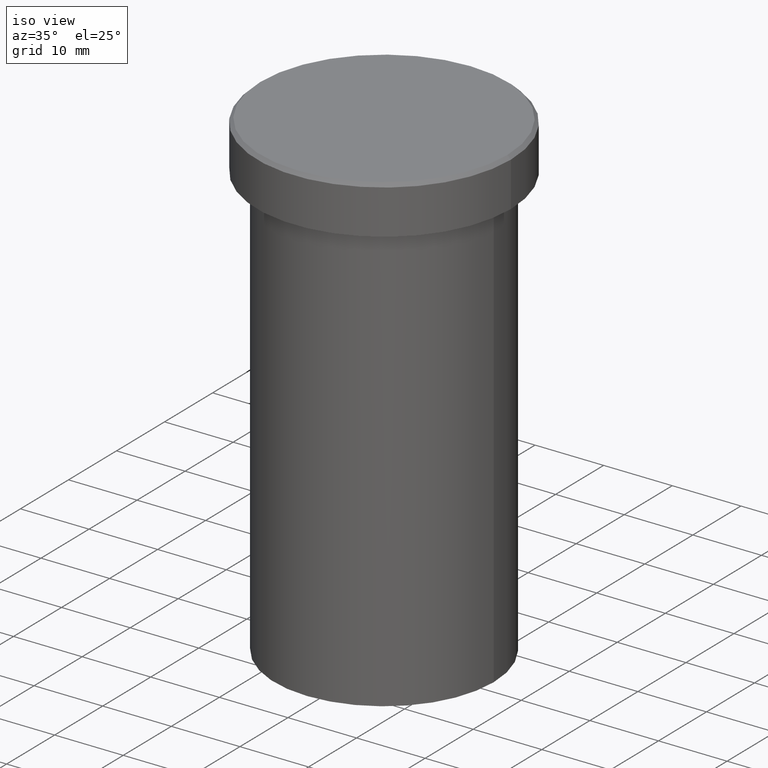
[diagram: clean part render]
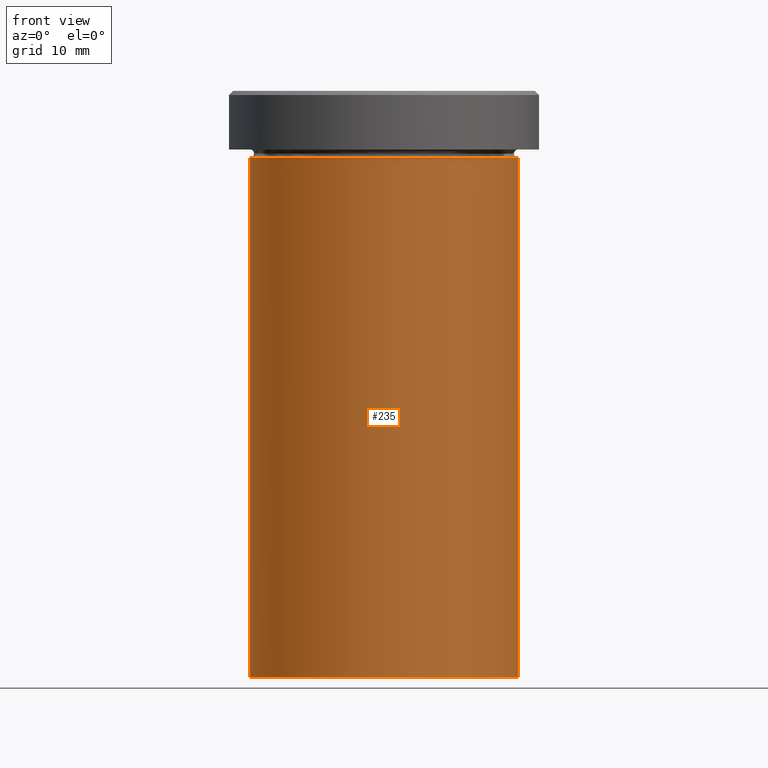
[diagram: tour spotlight — one face highlighted and labeled with its STEP entity id]
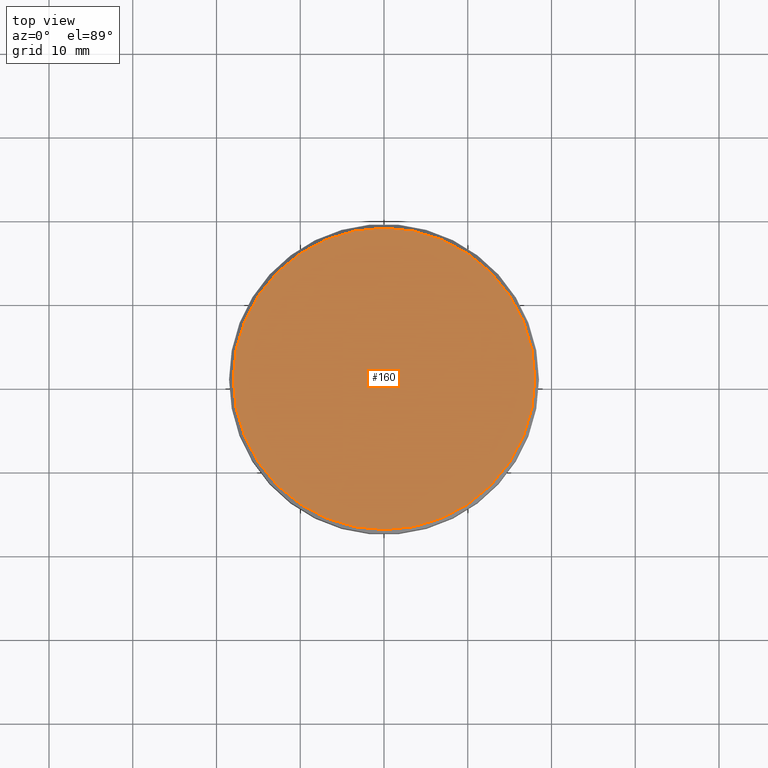
[diagram: tour spotlight — one face highlighted and labeled with its STEP entity id]
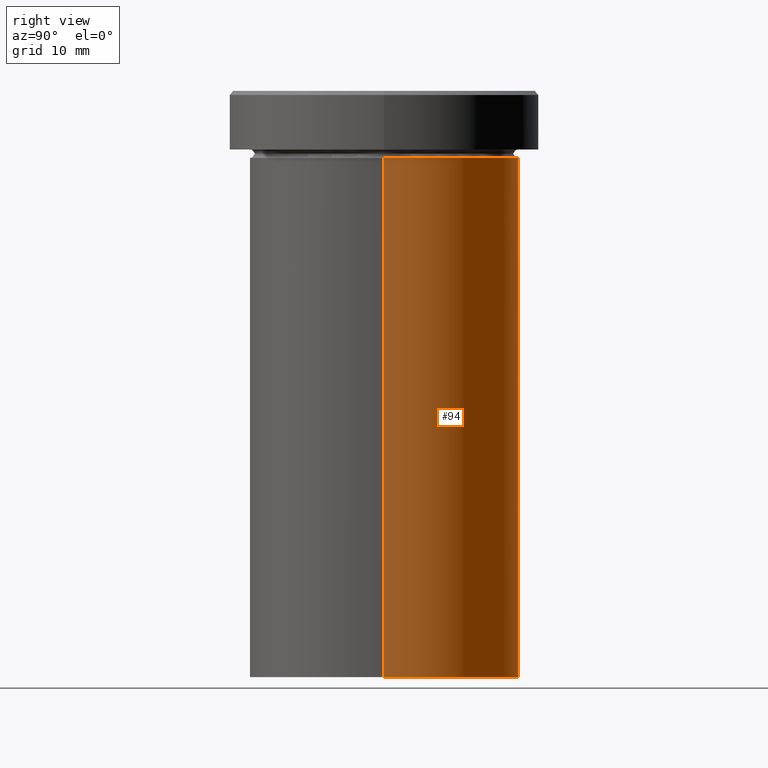
[diagram: tour spotlight — one face highlighted and labeled with its STEP entity id]
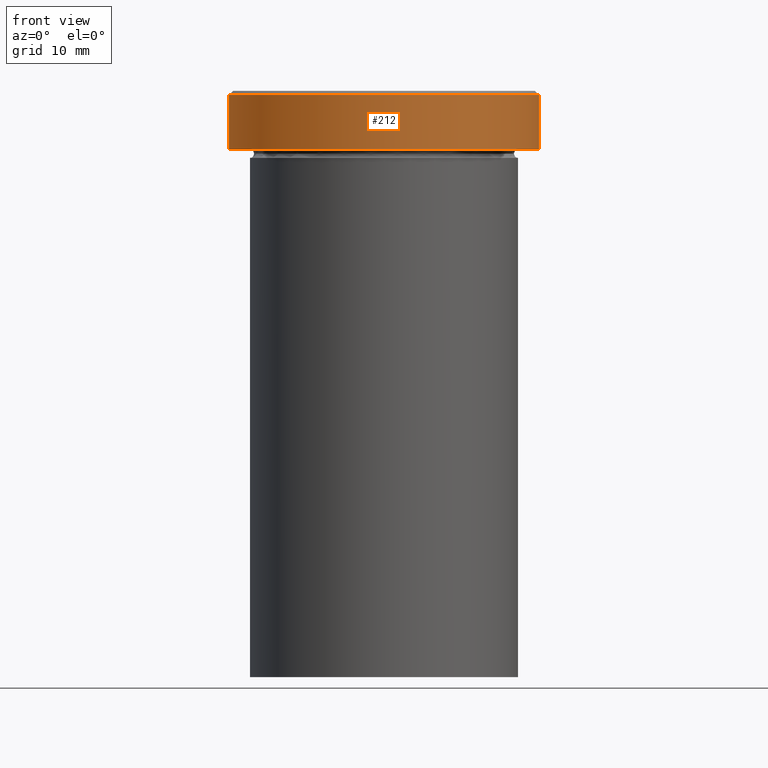
[diagram: tour spotlight — one face highlighted and labeled with its STEP entity id]
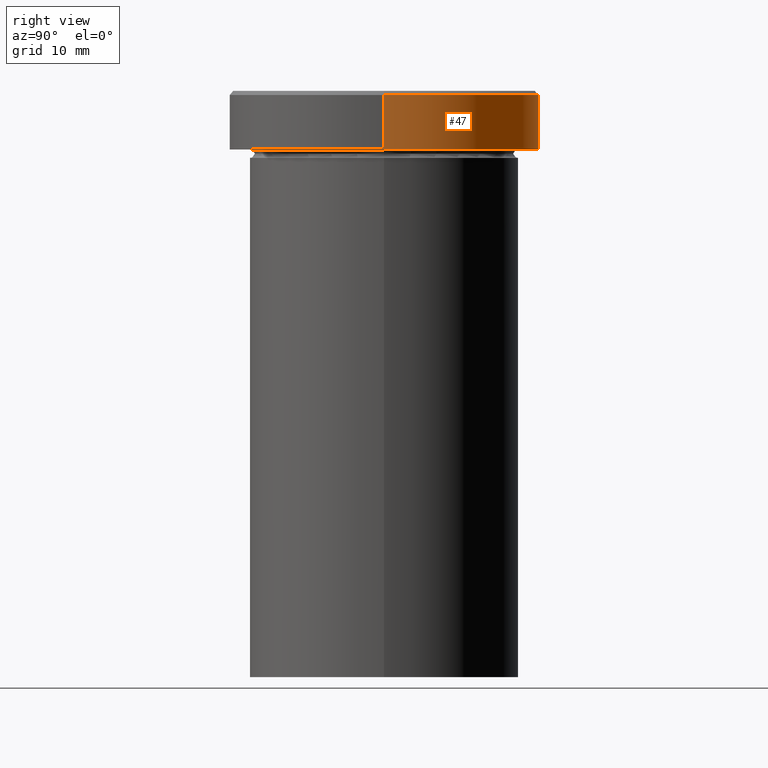
[diagram: tour spotlight — one face highlighted and labeled with its STEP entity id]
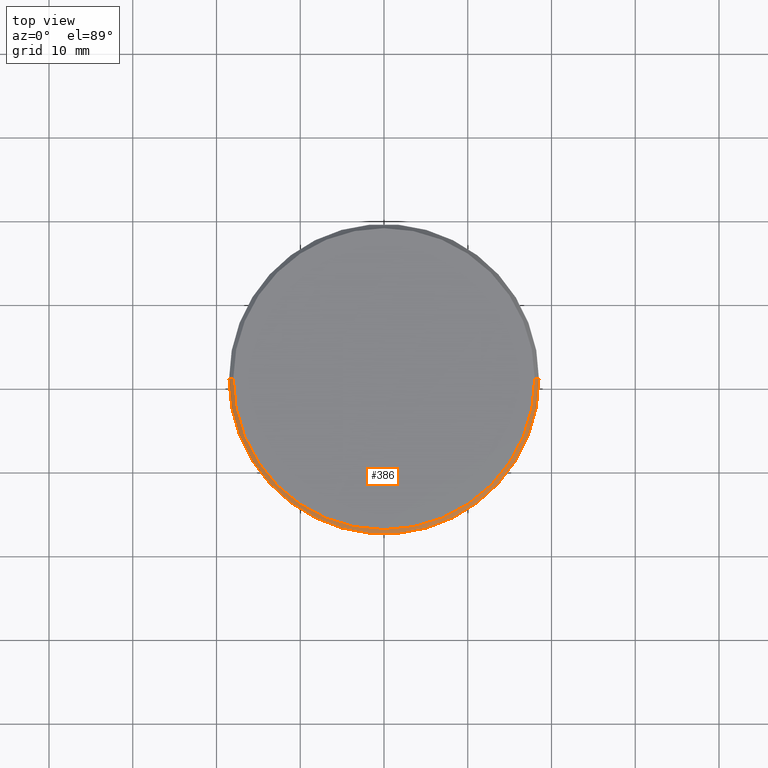
[diagram: tour spotlight — one face highlighted and labeled with its STEP entity id]
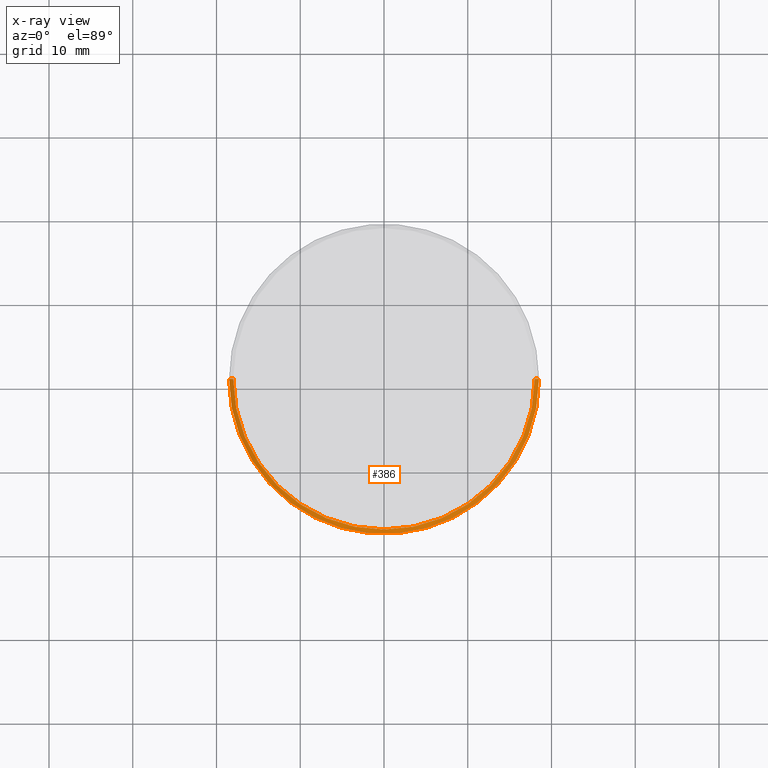
[diagram: x-ray of the same camera — body ghosted, this tour face saturated]
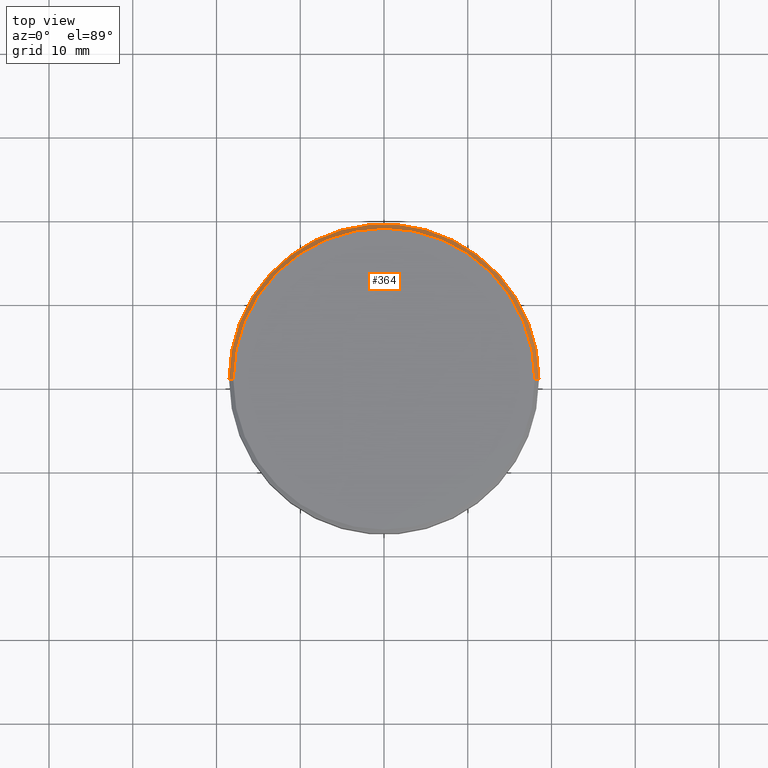
[diagram: tour spotlight — one face highlighted and labeled with its STEP entity id]
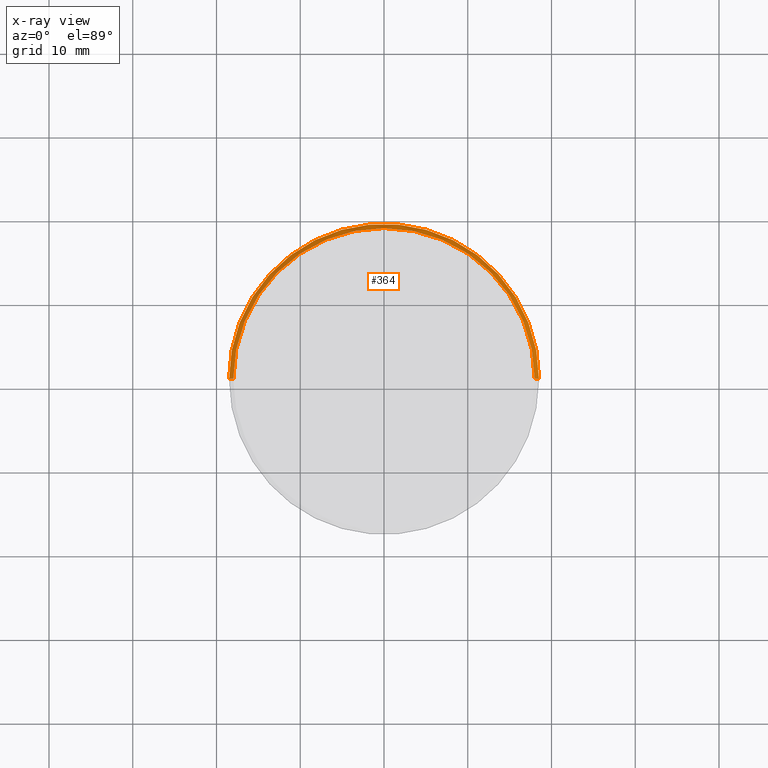
[diagram: x-ray of the same camera — body ghosted, this tour face saturated]
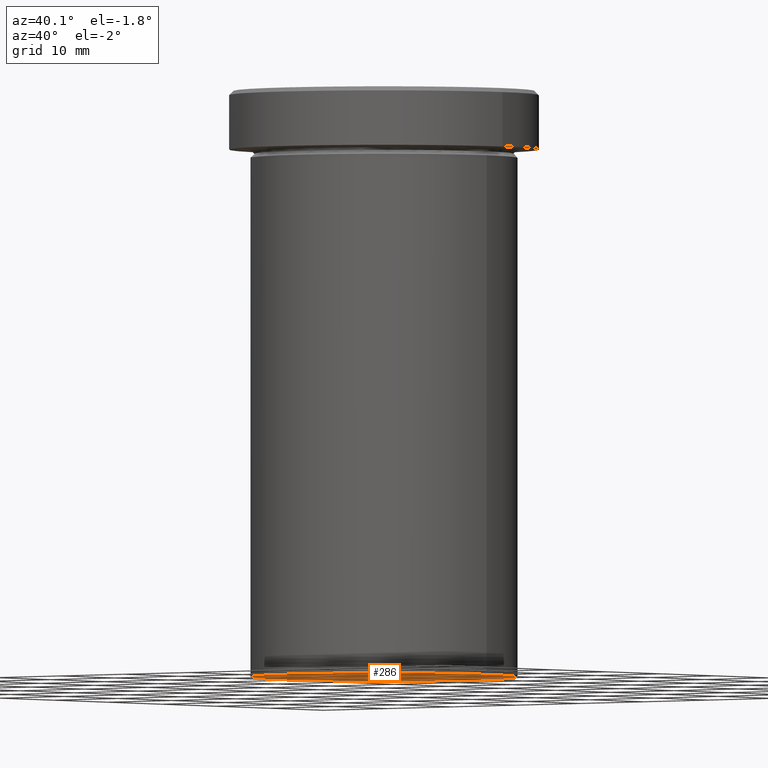
[diagram: tour spotlight — one face highlighted and labeled with its STEP entity id]
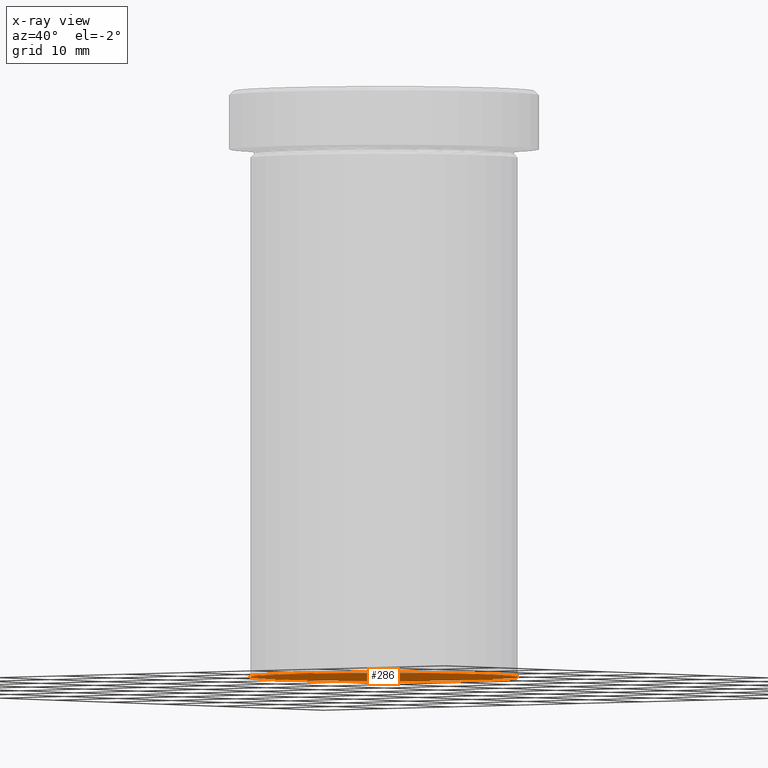
[diagram: x-ray of the same camera — body ghosted, this tour face saturated]
A machine part: a face-by-face anatomy tour. The part has 13 B-rep faces; the first image is the clean iso view, then the 8 largest visible faces are spotlighted one at a time (largest first), each with its STEP entity span.

Face 1 — front view, entity #235. In plain terms, the highlighted cylindrical surface (partial cylindrical patch) has radius 16 mm, axis along (-0, -0, 1).
Definition (entity closure, byte-faithful):
#1 = CARTESIAN_POINT ( 'NONE',  ( -16.00000000000000000, 1.959434878635765131E-15, 0.000000000000000000 ) ) ;
#8 = CYLINDRICAL_SURFACE ( 'NONE', #130, 16.00000000000000000 ) ;
#15 = DIRECTION ( 'NONE',  ( 1.000000000000000000, 0.000000000000000000, 0.000000000000000000 ) ) ;
#26 = VERTEX_POINT ( 'NONE', #121 ) ;
#28 = CARTESIAN_POINT ( 'NONE',  ( -16.00000000000000000, 1.959434878635765131E-15, -8.000000000000000000 ) ) ;
#41 = VERTEX_POINT ( 'NONE', #49 ) ;
#49 = CARTESIAN_POINT ( 'NONE',  ( 16.00000000000000000, 0.000000000000000000, -8.000000000000000000 ) ) ;
#55 = CIRCLE ( 'NONE', #143, 16.00000000000000000 ) ;
#66 = DIRECTION ( 'NONE',  ( -0.000000000000000000, -0.000000000000000000, 1.000000000000000000 ) ) ;
#100 = CARTESIAN_POINT ( 'NONE',  ( -16.00000000000000000, 1.959434878635765131E-15, -70.00000000000000000 ) ) ;
#112 = DIRECTION ( 'NONE',  ( -0.000000000000000000, -0.000000000000000000, 1.000000000000000000 ) ) ;
#121 = CARTESIAN_POINT ( 'NONE',  ( 16.00000000000000000, 0.000000000000000000, -70.00000000000000000 ) ) ;
#130 = AXIS2_PLACEMENT_3D ( 'NONE', #202, #145, #270 ) ;
#132 = EDGE_CURVE ( 'NONE', #395, #26, #249, .T. ) ;
#142 = DIRECTION ( 'NONE',  ( -0.000000000000000000, -0.000000000000000000, 1.000000000000000000 ) ) ;
#143 = AXIS2_PLACEMENT_3D ( 'NONE', #300, #271, #15 ) ;
#145 = DIRECTION ( 'NONE',  ( -0.000000000000000000, -0.000000000000000000, 1.000000000000000000 ) ) ;
#152 = ORIENTED_EDGE ( 'NONE', *, *, #132, .T. ) ;
#168 = DIRECTION ( 'NONE',  ( 1.000000000000000000, 0.000000000000000000, 0.000000000000000000 ) ) ;
#172 = EDGE_CURVE ( 'NONE', #395, #400, #204, .T. ) ;
#190 = ORIENTED_EDGE ( 'NONE', *, *, #241, .T. ) ;
#202 = CARTESIAN_POINT ( 'NONE',  ( 0.000000000000000000, 0.000000000000000000, 0.000000000000000000 ) ) ;
#204 = LINE ( 'NONE', #1, #311 ) ;
#207 = AXIS2_PLACEMENT_3D ( 'NONE', #345, #66, #168 ) ;
#235 = ADVANCED_FACE ( 'NONE', ( #356 ), #8, .T. ) ;
#241 = EDGE_CURVE ( 'NONE', #26, #41, #243, .T. ) ;
#243 = LINE ( 'NONE', #387, #329 ) ;
#248 = EDGE_CURVE ( 'NONE', #400, #41, #55, .T. ) ;
#249 = CIRCLE ( 'NONE', #207, 16.00000000000000000 ) ;
#270 = DIRECTION ( 'NONE',  ( 1.000000000000000000, 0.000000000000000000, 0.000000000000000000 ) ) ;
#271 = DIRECTION ( 'NONE',  ( -0.000000000000000000, -0.000000000000000000, 1.000000000000000000 ) ) ;
#284 = ORIENTED_EDGE ( 'NONE', *, *, #172, .F. ) ;
#294 = ORIENTED_EDGE ( 'NONE', *, *, #248, .F. ) ;
#300 = CARTESIAN_POINT ( 'NONE',  ( 0.000000000000000000, 0.000000000000000000, -8.000000000000000000 ) ) ;
#311 = VECTOR ( 'NONE', #142, 1000.000000000000000 ) ;
#329 = VECTOR ( 'NONE', #112, 1000.000000000000000 ) ;
#345 = CARTESIAN_POINT ( 'NONE',  ( 0.000000000000000000, 0.000000000000000000, -70.00000000000000000 ) ) ;
#356 = FACE_OUTER_BOUND ( 'NONE', #407, .T. ) ;
#387 = CARTESIAN_POINT ( 'NONE',  ( 16.00000000000000000, 0.000000000000000000, 0.000000000000000000 ) ) ;
#395 = VERTEX_POINT ( 'NONE', #100 ) ;
#400 = VERTEX_POINT ( 'NONE', #28 ) ;
#407 = EDGE_LOOP ( 'NONE', ( #284, #152, #190, #294 ) ) ;

Face 2 — top view, entity #160. In plain terms, the highlighted planar face has unit normal (0, -0, 1).
Definition (entity closure, byte-faithful):
#2 = ORIENTED_EDGE ( 'NONE', *, *, #101, .T. ) ;
#9 = CIRCLE ( 'NONE', #108, 18.00000000000001066 ) ;
#44 = ORIENTED_EDGE ( 'NONE', *, *, #89, .T. ) ;
#50 = CARTESIAN_POINT ( 'NONE',  ( 18.00000000000001066, 2.234980408443920004E-15, 0.000000000000000000 ) ) ;
#68 = DIRECTION ( 'NONE',  ( 1.000000000000000000, 0.000000000000000000, 0.000000000000000000 ) ) ;
#74 = FACE_OUTER_BOUND ( 'NONE', #205, .T. ) ;
#79 = DIRECTION ( 'NONE',  ( 0.000000000000000000, -0.000000000000000000, 1.000000000000000000 ) ) ;
#80 = CIRCLE ( 'NONE', #409, 18.00000000000001066 ) ;
#89 = EDGE_CURVE ( 'NONE', #369, #275, #80, .T. ) ;
#101 = EDGE_CURVE ( 'NONE', #275, #369, #9, .T. ) ;
#102 = DIRECTION ( 'NONE',  ( -0.000000000000000000, -0.000000000000000000, 1.000000000000000000 ) ) ;
#108 = AXIS2_PLACEMENT_3D ( 'NONE', #250, #287, #257 ) ;
#160 = ADVANCED_FACE ( 'NONE', ( #74 ), #328, .T. ) ;
#205 = EDGE_LOOP ( 'NONE', ( #44, #2 ) ) ;
#250 = CARTESIAN_POINT ( 'NONE',  ( 0.000000000000000000, 0.000000000000000000, 0.000000000000000000 ) ) ;
#257 = DIRECTION ( 'NONE',  ( 1.000000000000000000, 0.000000000000000000, 0.000000000000000000 ) ) ;
#275 = VERTEX_POINT ( 'NONE', #50 ) ;
#277 = AXIS2_PLACEMENT_3D ( 'NONE', #296, #79, #333 ) ;
#287 = DIRECTION ( 'NONE',  ( -0.000000000000000000, -0.000000000000000000, 1.000000000000000000 ) ) ;
#296 = CARTESIAN_POINT ( 'NONE',  ( 0.000000000000000000, 0.000000000000000000, 0.000000000000000000 ) ) ;
#316 = CARTESIAN_POINT ( 'NONE',  ( 0.000000000000000000, 0.000000000000000000, 0.000000000000000000 ) ) ;
#328 = PLANE ( 'NONE',  #277 ) ;
#333 = DIRECTION ( 'NONE',  ( 1.000000000000000000, 0.000000000000000000, 0.000000000000000000 ) ) ;
#369 = VERTEX_POINT ( 'NONE', #404 ) ;
#404 = CARTESIAN_POINT ( 'NONE',  ( -18.00000000000001066, 0.000000000000000000, 0.000000000000000000 ) ) ;
#409 = AXIS2_PLACEMENT_3D ( 'NONE', #316, #102, #68 ) ;

Face 3 — right view, entity #94. In plain terms, the highlighted cylindrical surface (partial cylindrical patch) has radius 16 mm, axis along (-0, -0, 1).
Definition (entity closure, byte-faithful):
#1 = CARTESIAN_POINT ( 'NONE',  ( -16.00000000000000000, 1.959434878635765131E-15, 0.000000000000000000 ) ) ;
#25 = EDGE_CURVE ( 'NONE', #26, #395, #222, .T. ) ;
#26 = VERTEX_POINT ( 'NONE', #121 ) ;
#28 = CARTESIAN_POINT ( 'NONE',  ( -16.00000000000000000, 1.959434878635765131E-15, -8.000000000000000000 ) ) ;
#30 = DIRECTION ( 'NONE',  ( 1.000000000000000000, 0.000000000000000000, 0.000000000000000000 ) ) ;
#39 = AXIS2_PLACEMENT_3D ( 'NONE', #366, #196, #30 ) ;
#41 = VERTEX_POINT ( 'NONE', #49 ) ;
#48 = AXIS2_PLACEMENT_3D ( 'NONE', #70, #117, #211 ) ;
#49 = CARTESIAN_POINT ( 'NONE',  ( 16.00000000000000000, 0.000000000000000000, -8.000000000000000000 ) ) ;
#70 = CARTESIAN_POINT ( 'NONE',  ( 0.000000000000000000, 0.000000000000000000, -8.000000000000000000 ) ) ;
#75 = ORIENTED_EDGE ( 'NONE', *, *, #150, .F. ) ;
#94 = ADVANCED_FACE ( 'NONE', ( #198 ), #398, .T. ) ;
#100 = CARTESIAN_POINT ( 'NONE',  ( -16.00000000000000000, 1.959434878635765131E-15, -70.00000000000000000 ) ) ;
#112 = DIRECTION ( 'NONE',  ( -0.000000000000000000, -0.000000000000000000, 1.000000000000000000 ) ) ;
#117 = DIRECTION ( 'NONE',  ( -0.000000000000000000, -0.000000000000000000, 1.000000000000000000 ) ) ;
#121 = CARTESIAN_POINT ( 'NONE',  ( 16.00000000000000000, 0.000000000000000000, -70.00000000000000000 ) ) ;
#142 = DIRECTION ( 'NONE',  ( -0.000000000000000000, -0.000000000000000000, 1.000000000000000000 ) ) ;
#150 = EDGE_CURVE ( 'NONE', #41, #400, #229, .T. ) ;
#151 = DIRECTION ( 'NONE',  ( -0.000000000000000000, -0.000000000000000000, 1.000000000000000000 ) ) ;
#169 = EDGE_LOOP ( 'NONE', ( #223, #322, #75, #174 ) ) ;
#172 = EDGE_CURVE ( 'NONE', #395, #400, #204, .T. ) ;
#174 = ORIENTED_EDGE ( 'NONE', *, *, #241, .F. ) ;
#180 = CARTESIAN_POINT ( 'NONE',  ( 0.000000000000000000, 0.000000000000000000, -70.00000000000000000 ) ) ;
#196 = DIRECTION ( 'NONE',  ( -0.000000000000000000, -0.000000000000000000, 1.000000000000000000 ) ) ;
#198 = FACE_OUTER_BOUND ( 'NONE', #169, .T. ) ;
#204 = LINE ( 'NONE', #1, #311 ) ;
#211 = DIRECTION ( 'NONE',  ( 1.000000000000000000, 0.000000000000000000, 0.000000000000000000 ) ) ;
#222 = CIRCLE ( 'NONE', #291, 16.00000000000000000 ) ;
#223 = ORIENTED_EDGE ( 'NONE', *, *, #25, .T. ) ;
#229 = CIRCLE ( 'NONE', #48, 16.00000000000000000 ) ;
#241 = EDGE_CURVE ( 'NONE', #26, #41, #243, .T. ) ;
#243 = LINE ( 'NONE', #387, #329 ) ;
#274 = DIRECTION ( 'NONE',  ( 1.000000000000000000, 0.000000000000000000, 0.000000000000000000 ) ) ;
#291 = AXIS2_PLACEMENT_3D ( 'NONE', #180, #151, #274 ) ;
#311 = VECTOR ( 'NONE', #142, 1000.000000000000000 ) ;
#322 = ORIENTED_EDGE ( 'NONE', *, *, #172, .T. ) ;
#329 = VECTOR ( 'NONE', #112, 1000.000000000000000 ) ;
#366 = CARTESIAN_POINT ( 'NONE',  ( 0.000000000000000000, 0.000000000000000000, 0.000000000000000000 ) ) ;
#387 = CARTESIAN_POINT ( 'NONE',  ( 16.00000000000000000, 0.000000000000000000, 0.000000000000000000 ) ) ;
#395 = VERTEX_POINT ( 'NONE', #100 ) ;
#398 = CYLINDRICAL_SURFACE ( 'NONE', #39, 16.00000000000000000 ) ;
#400 = VERTEX_POINT ( 'NONE', #28 ) ;

Face 4 — front view, entity #212. In plain terms, the highlighted cylindrical surface (partial cylindrical patch) has radius 18.5 mm, axis along (-0, -0, 1).
Definition (entity closure, byte-faithful):
#4 = DIRECTION ( 'NONE',  ( 1.000000000000000000, 0.000000000000000000, 0.000000000000000000 ) ) ;
#5 = ORIENTED_EDGE ( 'NONE', *, *, #390, .T. ) ;
#11 = CYLINDRICAL_SURFACE ( 'NONE', #353, 18.50000000000000000 ) ;
#35 = CARTESIAN_POINT ( 'NONE',  ( 18.50000000000000000, 0.000000000000000000, -6.999999999999998224 ) ) ;
#58 = ORIENTED_EDGE ( 'NONE', *, *, #251, .T. ) ;
#62 = VECTOR ( 'NONE', #319, 1000.000000000000000 ) ;
#69 = VECTOR ( 'NONE', #378, 1000.000000000000000 ) ;
#82 = FACE_OUTER_BOUND ( 'NONE', #242, .T. ) ;
#86 = ORIENTED_EDGE ( 'NONE', *, *, #164, .T. ) ;
#87 = CARTESIAN_POINT ( 'NONE',  ( -18.50000000000000000, 2.265596578422603396E-15, 0.000000000000000000 ) ) ;
#110 = DIRECTION ( 'NONE',  ( -0.000000000000000000, -0.000000000000000000, 1.000000000000000000 ) ) ;
#113 = EDGE_CURVE ( 'NONE', #252, #133, #228, .T. ) ;
#115 = DIRECTION ( 'NONE',  ( 1.000000000000000000, 0.000000000000000000, 0.000000000000000000 ) ) ;
#118 = AXIS2_PLACEMENT_3D ( 'NONE', #352, #246, #4 ) ;
#124 = VERTEX_POINT ( 'NONE', #35 ) ;
#125 = CIRCLE ( 'NONE', #208, 18.50000000000000000 ) ;
#133 = VERTEX_POINT ( 'NONE', #293 ) ;
#134 = LINE ( 'NONE', #285, #69 ) ;
#148 = CARTESIAN_POINT ( 'NONE',  ( 0.000000000000000000, 0.000000000000000000, -6.999999999999998224 ) ) ;
#157 = CIRCLE ( 'NONE', #118, 18.50000000000000000 ) ;
#164 = EDGE_CURVE ( 'NONE', #209, #133, #157, .T. ) ;
#176 = CARTESIAN_POINT ( 'NONE',  ( 0.000000000000000000, 0.000000000000000000, 0.000000000000000000 ) ) ;
#208 = AXIS2_PLACEMENT_3D ( 'NONE', #148, #388, #115 ) ;
#209 = VERTEX_POINT ( 'NONE', #384 ) ;
#212 = ADVANCED_FACE ( 'NONE', ( #82 ), #11, .T. ) ;
#228 = LINE ( 'NONE', #87, #62 ) ;
#242 = EDGE_LOOP ( 'NONE', ( #349, #58, #5, #86 ) ) ;
#246 = DIRECTION ( 'NONE',  ( 0.000000000000000000, 0.000000000000000000, -1.000000000000000000 ) ) ;
#251 = EDGE_CURVE ( 'NONE', #252, #124, #125, .T. ) ;
#252 = VERTEX_POINT ( 'NONE', #357 ) ;
#263 = DIRECTION ( 'NONE',  ( 1.000000000000000000, 0.000000000000000000, 0.000000000000000000 ) ) ;
#285 = CARTESIAN_POINT ( 'NONE',  ( 18.50000000000000000, 0.000000000000000000, 0.000000000000000000 ) ) ;
#293 = CARTESIAN_POINT ( 'NONE',  ( -18.50000000000000000, 2.265596578422603396E-15, -0.5000000000000073275 ) ) ;
#319 = DIRECTION ( 'NONE',  ( -0.000000000000000000, -0.000000000000000000, 1.000000000000000000 ) ) ;
#349 = ORIENTED_EDGE ( 'NONE', *, *, #113, .F. ) ;
#352 = CARTESIAN_POINT ( 'NONE',  ( 0.000000000000000000, 0.000000000000000000, -0.5000000000000073275 ) ) ;
#353 = AXIS2_PLACEMENT_3D ( 'NONE', #176, #110, #263 ) ;
#357 = CARTESIAN_POINT ( 'NONE',  ( -18.50000000000000000, 2.265596578422603396E-15, -6.999999999999998224 ) ) ;
#378 = DIRECTION ( 'NONE',  ( -0.000000000000000000, -0.000000000000000000, 1.000000000000000000 ) ) ;
#384 = CARTESIAN_POINT ( 'NONE',  ( 18.50000000000000000, 0.000000000000000000, -0.5000000000000073275 ) ) ;
#388 = DIRECTION ( 'NONE',  ( -0.000000000000000000, -0.000000000000000000, 1.000000000000000000 ) ) ;
#390 = EDGE_CURVE ( 'NONE', #124, #209, #134, .T. ) ;

Face 5 — right view, entity #47. In plain terms, the highlighted cylindrical surface (partial cylindrical patch) has radius 18.5 mm, axis along (-0, -0, 1).
Definition (entity closure, byte-faithful):
#13 = FACE_OUTER_BOUND ( 'NONE', #52, .T. ) ;
#19 = DIRECTION ( 'NONE',  ( -0.000000000000000000, -0.000000000000000000, 1.000000000000000000 ) ) ;
#35 = CARTESIAN_POINT ( 'NONE',  ( 18.50000000000000000, 0.000000000000000000, -6.999999999999998224 ) ) ;
#47 = ADVANCED_FACE ( 'NONE', ( #13 ), #146, .T. ) ;
#52 = EDGE_LOOP ( 'NONE', ( #375, #99, #335, #315 ) ) ;
#56 = EDGE_CURVE ( 'NONE', #133, #209, #85, .T. ) ;
#62 = VECTOR ( 'NONE', #319, 1000.000000000000000 ) ;
#69 = VECTOR ( 'NONE', #378, 1000.000000000000000 ) ;
#85 = CIRCLE ( 'NONE', #131, 18.50000000000000000 ) ;
#87 = CARTESIAN_POINT ( 'NONE',  ( -18.50000000000000000, 2.265596578422603396E-15, 0.000000000000000000 ) ) ;
#99 = ORIENTED_EDGE ( 'NONE', *, *, #113, .T. ) ;
#113 = EDGE_CURVE ( 'NONE', #252, #133, #228, .T. ) ;
#116 = AXIS2_PLACEMENT_3D ( 'NONE', #188, #306, #159 ) ;
#124 = VERTEX_POINT ( 'NONE', #35 ) ;
#131 = AXIS2_PLACEMENT_3D ( 'NONE', #214, #394, #153 ) ;
#133 = VERTEX_POINT ( 'NONE', #293 ) ;
#134 = LINE ( 'NONE', #285, #69 ) ;
#146 = CYLINDRICAL_SURFACE ( 'NONE', #162, 18.50000000000000000 ) ;
#153 = DIRECTION ( 'NONE',  ( 1.000000000000000000, 0.000000000000000000, 0.000000000000000000 ) ) ;
#159 = DIRECTION ( 'NONE',  ( 1.000000000000000000, 0.000000000000000000, 0.000000000000000000 ) ) ;
#162 = AXIS2_PLACEMENT_3D ( 'NONE', #247, #19, #361 ) ;
#188 = CARTESIAN_POINT ( 'NONE',  ( 0.000000000000000000, 0.000000000000000000, -6.999999999999998224 ) ) ;
#209 = VERTEX_POINT ( 'NONE', #384 ) ;
#214 = CARTESIAN_POINT ( 'NONE',  ( 0.000000000000000000, 0.000000000000000000, -0.5000000000000073275 ) ) ;
#219 = CIRCLE ( 'NONE', #116, 18.50000000000000000 ) ;
#228 = LINE ( 'NONE', #87, #62 ) ;
#247 = CARTESIAN_POINT ( 'NONE',  ( 0.000000000000000000, 0.000000000000000000, 0.000000000000000000 ) ) ;
#252 = VERTEX_POINT ( 'NONE', #357 ) ;
#285 = CARTESIAN_POINT ( 'NONE',  ( 18.50000000000000000, 0.000000000000000000, 0.000000000000000000 ) ) ;
#293 = CARTESIAN_POINT ( 'NONE',  ( -18.50000000000000000, 2.265596578422603396E-15, -0.5000000000000073275 ) ) ;
#301 = EDGE_CURVE ( 'NONE', #124, #252, #219, .T. ) ;
#306 = DIRECTION ( 'NONE',  ( -0.000000000000000000, -0.000000000000000000, 1.000000000000000000 ) ) ;
#315 = ORIENTED_EDGE ( 'NONE', *, *, #390, .F. ) ;
#319 = DIRECTION ( 'NONE',  ( -0.000000000000000000, -0.000000000000000000, 1.000000000000000000 ) ) ;
#335 = ORIENTED_EDGE ( 'NONE', *, *, #56, .T. ) ;
#357 = CARTESIAN_POINT ( 'NONE',  ( -18.50000000000000000, 2.265596578422603396E-15, -6.999999999999998224 ) ) ;
#361 = DIRECTION ( 'NONE',  ( 1.000000000000000000, 0.000000000000000000, 0.000000000000000000 ) ) ;
#375 = ORIENTED_EDGE ( 'NONE', *, *, #301, .T. ) ;
#378 = DIRECTION ( 'NONE',  ( -0.000000000000000000, -0.000000000000000000, 1.000000000000000000 ) ) ;
#384 = CARTESIAN_POINT ( 'NONE',  ( 18.50000000000000000, 0.000000000000000000, -0.5000000000000073275 ) ) ;
#390 = EDGE_CURVE ( 'NONE', #124, #209, #134, .T. ) ;
#394 = DIRECTION ( 'NONE',  ( 0.000000000000000000, 0.000000000000000000, -1.000000000000000000 ) ) ;

Face 6 — top view, entity #386. An x-ray twin of the same camera follows (body ghosted, this face saturated) — the face is partly hidden behind the body. In plain terms, the highlighted conical surface has half-angle 45 deg.
Definition (entity closure, byte-faithful):
#4 = DIRECTION ( 'NONE',  ( 1.000000000000000000, 0.000000000000000000, 0.000000000000000000 ) ) ;
#12 = EDGE_CURVE ( 'NONE', #275, #209, #54, .T. ) ;
#23 = CARTESIAN_POINT ( 'NONE',  ( 18.00000000000001066, 2.204364238465237006E-15, 0.000000000000000000 ) ) ;
#46 = LINE ( 'NONE', #393, #200 ) ;
#50 = CARTESIAN_POINT ( 'NONE',  ( 18.00000000000001066, 2.234980408443920004E-15, 0.000000000000000000 ) ) ;
#54 = LINE ( 'NONE', #23, #334 ) ;
#68 = DIRECTION ( 'NONE',  ( 1.000000000000000000, 0.000000000000000000, 0.000000000000000000 ) ) ;
#80 = CIRCLE ( 'NONE', #409, 18.00000000000001066 ) ;
#89 = EDGE_CURVE ( 'NONE', #369, #275, #80, .T. ) ;
#102 = DIRECTION ( 'NONE',  ( -0.000000000000000000, -0.000000000000000000, 1.000000000000000000 ) ) ;
#106 = AXIS2_PLACEMENT_3D ( 'NONE', #376, #191, #195 ) ;
#118 = AXIS2_PLACEMENT_3D ( 'NONE', #352, #246, #4 ) ;
#122 = ORIENTED_EDGE ( 'NONE', *, *, #89, .F. ) ;
#133 = VERTEX_POINT ( 'NONE', #293 ) ;
#154 = DIRECTION ( 'NONE',  ( 0.7071067811865352493, 8.659560562354782482E-17, -0.7071067811865597852 ) ) ;
#157 = CIRCLE ( 'NONE', #118, 18.50000000000000000 ) ;
#158 = EDGE_CURVE ( 'NONE', #369, #133, #46, .T. ) ;
#164 = EDGE_CURVE ( 'NONE', #209, #133, #157, .T. ) ;
#171 = ORIENTED_EDGE ( 'NONE', *, *, #158, .T. ) ;
#191 = DIRECTION ( 'NONE',  ( 0.000000000000000000, 0.000000000000000000, -1.000000000000000000 ) ) ;
#195 = DIRECTION ( 'NONE',  ( -1.000000000000000000, 0.000000000000000000, 0.000000000000000000 ) ) ;
#200 = VECTOR ( 'NONE', #213, 1000.000000000000000 ) ;
#209 = VERTEX_POINT ( 'NONE', #384 ) ;
#213 = DIRECTION ( 'NONE',  ( -0.7071067811865352493, 0.000000000000000000, -0.7071067811865597852 ) ) ;
#246 = DIRECTION ( 'NONE',  ( 0.000000000000000000, 0.000000000000000000, -1.000000000000000000 ) ) ;
#261 = EDGE_LOOP ( 'NONE', ( #367, #122, #171, #338 ) ) ;
#275 = VERTEX_POINT ( 'NONE', #50 ) ;
#283 = FACE_OUTER_BOUND ( 'NONE', #261, .T. ) ;
#293 = CARTESIAN_POINT ( 'NONE',  ( -18.50000000000000000, 2.265596578422603396E-15, -0.5000000000000073275 ) ) ;
#316 = CARTESIAN_POINT ( 'NONE',  ( 0.000000000000000000, 0.000000000000000000, 0.000000000000000000 ) ) ;
#334 = VECTOR ( 'NONE', #154, 1000.000000000000000 ) ;
#338 = ORIENTED_EDGE ( 'NONE', *, *, #164, .F. ) ;
#352 = CARTESIAN_POINT ( 'NONE',  ( 0.000000000000000000, 0.000000000000000000, -0.5000000000000073275 ) ) ;
#367 = ORIENTED_EDGE ( 'NONE', *, *, #12, .F. ) ;
#369 = VERTEX_POINT ( 'NONE', #404 ) ;
#376 = CARTESIAN_POINT ( 'NONE',  ( 0.000000000000000000, 0.000000000000000000, 0.000000000000000000 ) ) ;
#384 = CARTESIAN_POINT ( 'NONE',  ( 18.50000000000000000, 0.000000000000000000, -0.5000000000000073275 ) ) ;
#386 = ADVANCED_FACE ( 'NONE', ( #283 ), #392, .T. ) ;
#392 = CONICAL_SURFACE ( 'NONE', #106, 18.00000000000001066, 0.7853981633974309595 ) ;
#393 = CARTESIAN_POINT ( 'NONE',  ( -18.00000000000001066, 0.000000000000000000, 0.000000000000000000 ) ) ;
#404 = CARTESIAN_POINT ( 'NONE',  ( -18.00000000000001066, 0.000000000000000000, 0.000000000000000000 ) ) ;
#409 = AXIS2_PLACEMENT_3D ( 'NONE', #316, #102, #68 ) ;

Face 7 — top view, entity #364. An x-ray twin of the same camera follows (body ghosted, this face saturated) — the face is partly hidden behind the body. In plain terms, the highlighted conical surface has half-angle 45 deg.
Definition (entity closure, byte-faithful):
#9 = CIRCLE ( 'NONE', #108, 18.00000000000001066 ) ;
#12 = EDGE_CURVE ( 'NONE', #275, #209, #54, .T. ) ;
#23 = CARTESIAN_POINT ( 'NONE',  ( 18.00000000000001066, 2.204364238465237006E-15, 0.000000000000000000 ) ) ;
#46 = LINE ( 'NONE', #393, #200 ) ;
#50 = CARTESIAN_POINT ( 'NONE',  ( 18.00000000000001066, 2.234980408443920004E-15, 0.000000000000000000 ) ) ;
#54 = LINE ( 'NONE', #23, #334 ) ;
#56 = EDGE_CURVE ( 'NONE', #133, #209, #85, .T. ) ;
#67 = DIRECTION ( 'NONE',  ( -1.000000000000000000, 0.000000000000000000, 0.000000000000000000 ) ) ;
#85 = CIRCLE ( 'NONE', #131, 18.50000000000000000 ) ;
#88 = ORIENTED_EDGE ( 'NONE', *, *, #12, .T. ) ;
#101 = EDGE_CURVE ( 'NONE', #275, #369, #9, .T. ) ;
#108 = AXIS2_PLACEMENT_3D ( 'NONE', #250, #287, #257 ) ;
#114 = EDGE_LOOP ( 'NONE', ( #182, #88, #354, #289 ) ) ;
#131 = AXIS2_PLACEMENT_3D ( 'NONE', #214, #394, #153 ) ;
#133 = VERTEX_POINT ( 'NONE', #293 ) ;
#137 = DIRECTION ( 'NONE',  ( 0.000000000000000000, 0.000000000000000000, -1.000000000000000000 ) ) ;
#149 = CONICAL_SURFACE ( 'NONE', #281, 18.00000000000001066, 0.7853981633974309595 ) ;
#153 = DIRECTION ( 'NONE',  ( 1.000000000000000000, 0.000000000000000000, 0.000000000000000000 ) ) ;
#154 = DIRECTION ( 'NONE',  ( 0.7071067811865352493, 8.659560562354782482E-17, -0.7071067811865597852 ) ) ;
#158 = EDGE_CURVE ( 'NONE', #369, #133, #46, .T. ) ;
#182 = ORIENTED_EDGE ( 'NONE', *, *, #101, .F. ) ;
#200 = VECTOR ( 'NONE', #213, 1000.000000000000000 ) ;
#209 = VERTEX_POINT ( 'NONE', #384 ) ;
#213 = DIRECTION ( 'NONE',  ( -0.7071067811865352493, 0.000000000000000000, -0.7071067811865597852 ) ) ;
#214 = CARTESIAN_POINT ( 'NONE',  ( 0.000000000000000000, 0.000000000000000000, -0.5000000000000073275 ) ) ;
#250 = CARTESIAN_POINT ( 'NONE',  ( 0.000000000000000000, 0.000000000000000000, 0.000000000000000000 ) ) ;
#257 = DIRECTION ( 'NONE',  ( 1.000000000000000000, 0.000000000000000000, 0.000000000000000000 ) ) ;
#275 = VERTEX_POINT ( 'NONE', #50 ) ;
#281 = AXIS2_PLACEMENT_3D ( 'NONE', #408, #137, #67 ) ;
#287 = DIRECTION ( 'NONE',  ( -0.000000000000000000, -0.000000000000000000, 1.000000000000000000 ) ) ;
#289 = ORIENTED_EDGE ( 'NONE', *, *, #158, .F. ) ;
#290 = FACE_OUTER_BOUND ( 'NONE', #114, .T. ) ;
#293 = CARTESIAN_POINT ( 'NONE',  ( -18.50000000000000000, 2.265596578422603396E-15, -0.5000000000000073275 ) ) ;
#334 = VECTOR ( 'NONE', #154, 1000.000000000000000 ) ;
#354 = ORIENTED_EDGE ( 'NONE', *, *, #56, .F. ) ;
#364 = ADVANCED_FACE ( 'NONE', ( #290 ), #149, .T. ) ;
#369 = VERTEX_POINT ( 'NONE', #404 ) ;
#384 = CARTESIAN_POINT ( 'NONE',  ( 18.50000000000000000, 0.000000000000000000, -0.5000000000000073275 ) ) ;
#393 = CARTESIAN_POINT ( 'NONE',  ( -18.00000000000001066, 0.000000000000000000, 0.000000000000000000 ) ) ;
#394 = DIRECTION ( 'NONE',  ( 0.000000000000000000, 0.000000000000000000, -1.000000000000000000 ) ) ;
#404 = CARTESIAN_POINT ( 'NONE',  ( -18.00000000000001066, 0.000000000000000000, 0.000000000000000000 ) ) ;
#408 = CARTESIAN_POINT ( 'NONE',  ( 0.000000000000000000, 0.000000000000000000, 0.000000000000000000 ) ) ;

Face 8 — auxiliary view, entity #286. An x-ray twin of the same camera follows (body ghosted, this face saturated) — the face is partly hidden behind the body. In plain terms, the highlighted planar face has unit normal (0, 0, -1).
Definition (entity closure, byte-faithful):
#17 = CARTESIAN_POINT ( 'NONE',  ( 0.000000000000000000, 16.00000000000000000, -70.00000000000000000 ) ) ;
#25 = EDGE_CURVE ( 'NONE', #26, #395, #222, .T. ) ;
#26 = VERTEX_POINT ( 'NONE', #121 ) ;
#33 = ORIENTED_EDGE ( 'NONE', *, *, #132, .F. ) ;
#66 = DIRECTION ( 'NONE',  ( -0.000000000000000000, -0.000000000000000000, 1.000000000000000000 ) ) ;
#100 = CARTESIAN_POINT ( 'NONE',  ( -16.00000000000000000, 1.959434878635765131E-15, -70.00000000000000000 ) ) ;
#107 = ORIENTED_EDGE ( 'NONE', *, *, #25, .F. ) ;
#121 = CARTESIAN_POINT ( 'NONE',  ( 16.00000000000000000, 0.000000000000000000, -70.00000000000000000 ) ) ;
#126 = PLANE ( 'NONE',  #351 ) ;
#128 = DIRECTION ( 'NONE',  ( 0.000000000000000000, 0.000000000000000000, -1.000000000000000000 ) ) ;
#132 = EDGE_CURVE ( 'NONE', #395, #26, #249, .T. ) ;
#151 = DIRECTION ( 'NONE',  ( -0.000000000000000000, -0.000000000000000000, 1.000000000000000000 ) ) ;
#168 = DIRECTION ( 'NONE',  ( 1.000000000000000000, 0.000000000000000000, 0.000000000000000000 ) ) ;
#180 = CARTESIAN_POINT ( 'NONE',  ( 0.000000000000000000, 0.000000000000000000, -70.00000000000000000 ) ) ;
#189 = EDGE_LOOP ( 'NONE', ( #107, #33 ) ) ;
#207 = AXIS2_PLACEMENT_3D ( 'NONE', #345, #66, #168 ) ;
#222 = CIRCLE ( 'NONE', #291, 16.00000000000000000 ) ;
#249 = CIRCLE ( 'NONE', #207, 16.00000000000000000 ) ;
#274 = DIRECTION ( 'NONE',  ( 1.000000000000000000, 0.000000000000000000, 0.000000000000000000 ) ) ;
#286 = ADVANCED_FACE ( 'NONE', ( #304 ), #126, .T. ) ;
#291 = AXIS2_PLACEMENT_3D ( 'NONE', #180, #151, #274 ) ;
#304 = FACE_OUTER_BOUND ( 'NONE', #189, .T. ) ;
#345 = CARTESIAN_POINT ( 'NONE',  ( 0.000000000000000000, 0.000000000000000000, -70.00000000000000000 ) ) ;
#351 = AXIS2_PLACEMENT_3D ( 'NONE', #17, #128, #365 ) ;
#365 = DIRECTION ( 'NONE',  ( -1.000000000000000000, 0.000000000000000000, -0.000000000000000000 ) ) ;
#395 = VERTEX_POINT ( 'NONE', #100 ) ;